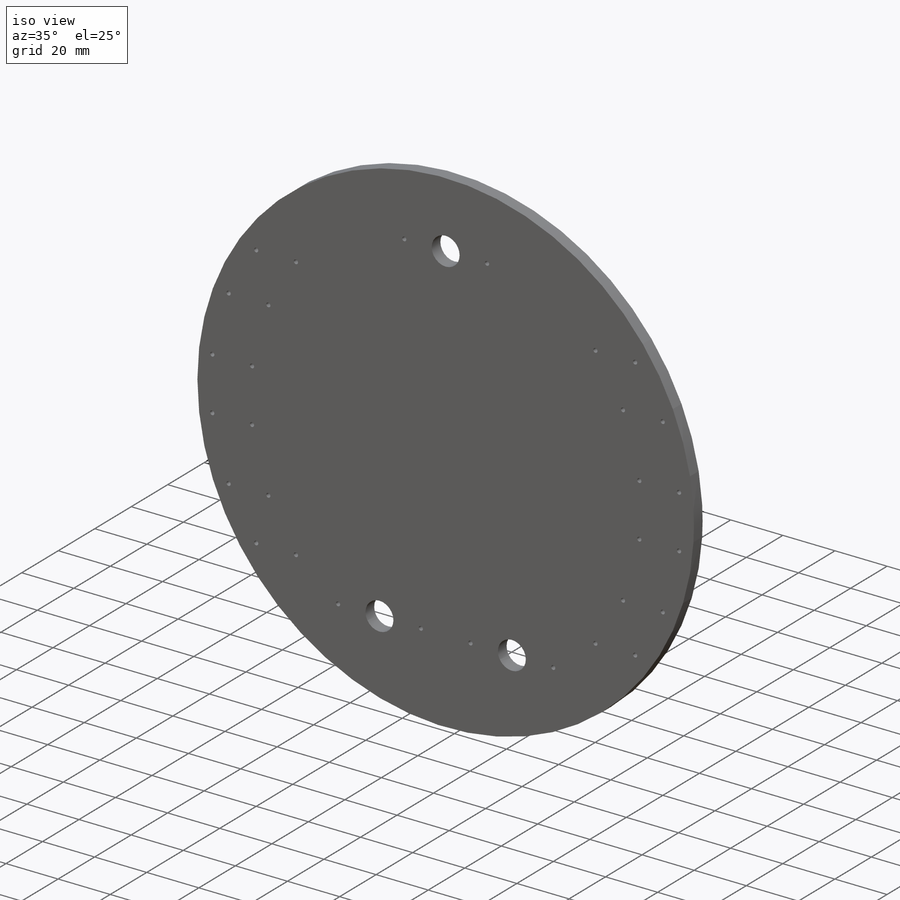
[diagram: iso view]
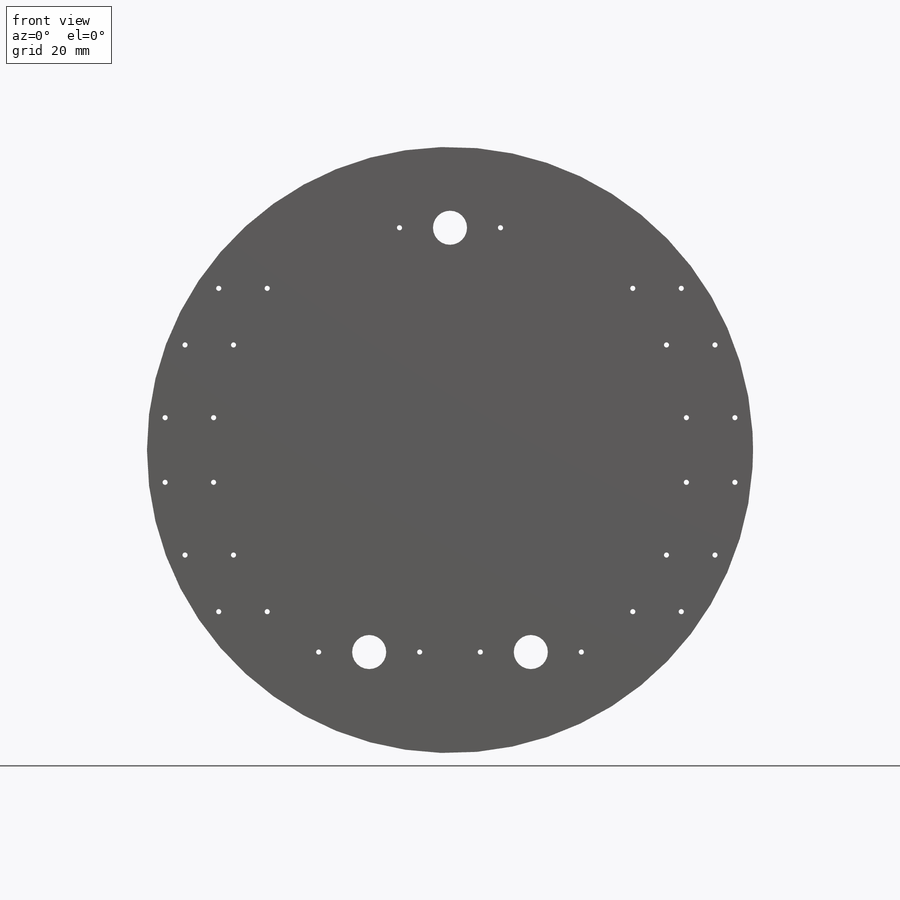
[diagram: front view]
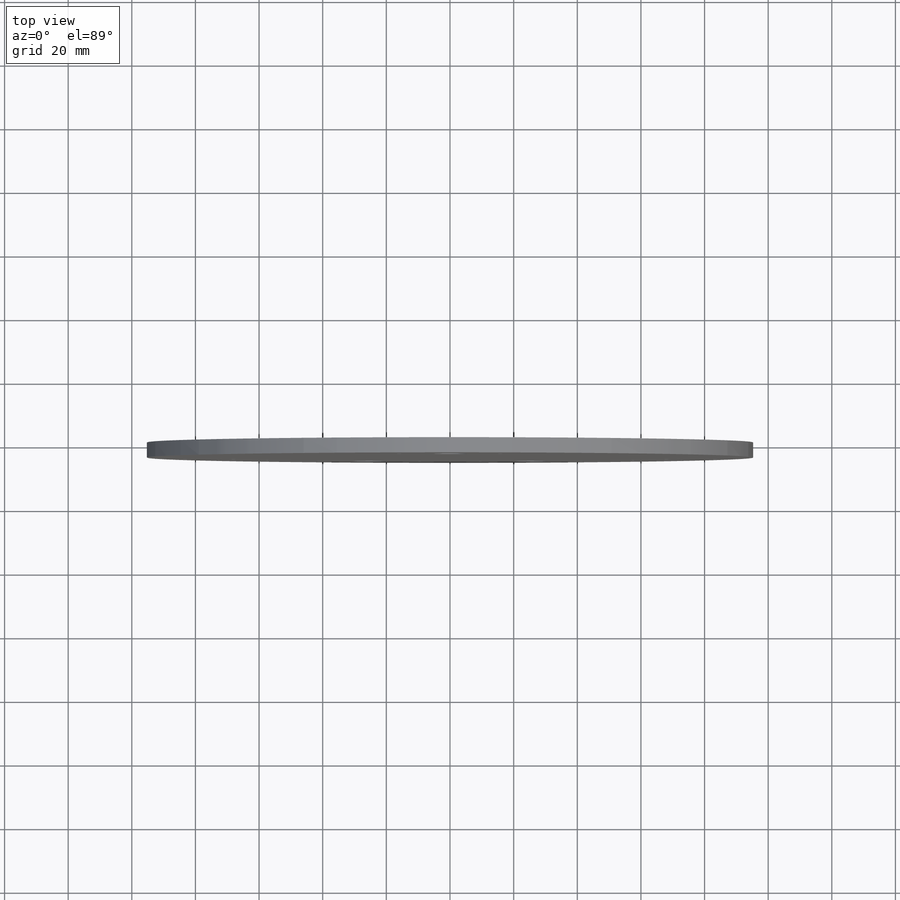
[diagram: top view]
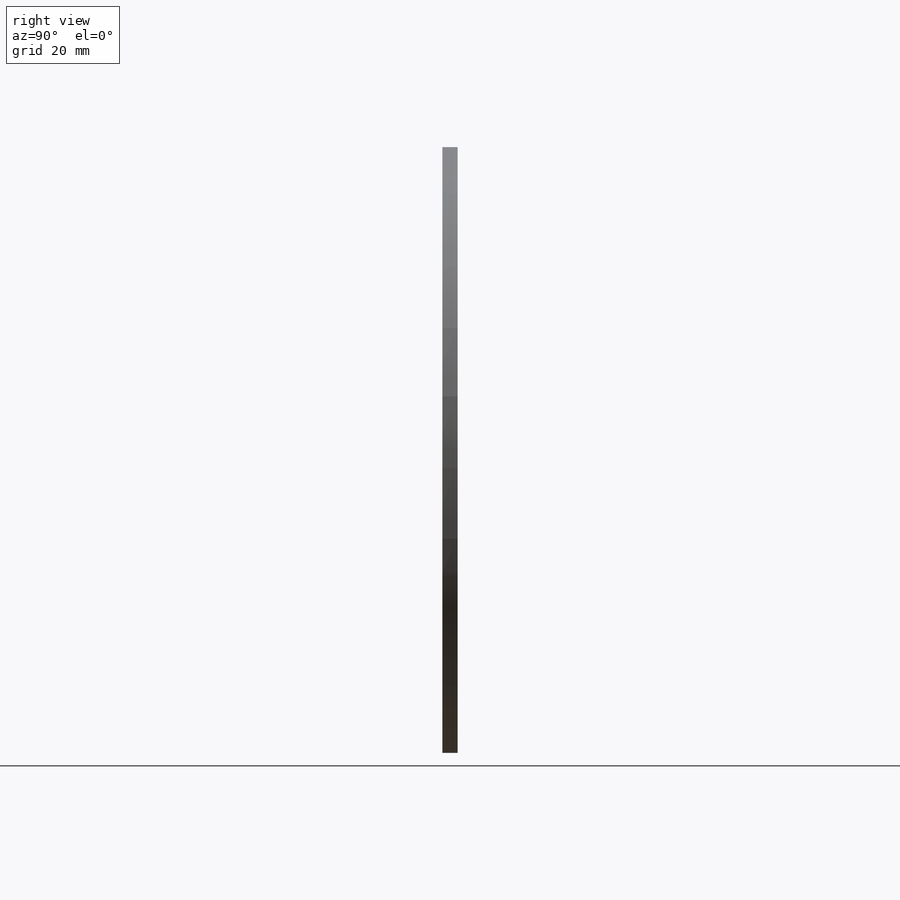
[diagram: right view]
SOLIDWORKS PART (.sldprt)
format: sldprt  version: not decoded by parser v0  size: 483,328 bytes
history: native  units: mm
features: thread x33, sketch x7, hole x3, material x1, extrude x1 (+11 scaffold rows collapsed)
feature tree (56):
  scaffold x11  (default folders/planes/origin — collapsed)
  material  "Delrin 2700 NC010, Low Viscosity Acetal Copolymer (SS)"
  sketch  "Sketch1"  dims[D1=190.5mm]
  extrude  "Boss-Extrude1"  Depth=4.7625mm
  hole  "M2x0.4 Tapped Hole1"  Diameter=1.6mm Depth=5.334mm
  sketch  "Sketch3"  dims[c1.D4=165.1mm c1.D1=15.24mm c1.D2=38.1mm c1.D3=50.8mm c2.D2=33.02mm c2.D3=15.24mm c2.D5=50.8mm c2.D6=15.24mm c2.D7=10.16mm]
  sketch  "Sketch2"  dims[hole-wizard template sketch: 47 standard entries collapsed; hole parameters kept: c15.Tap Drill Depth=5.334mm c15.D3=~14.816244mm c15.Drill Angle=180.0deg]
  thread  "Hole Thread1"  Diameter=4.064mm  [1 undecoded]
  thread  "Hole Thread2"  Diameter=4.064mm  [1 undecoded]
  thread  "Hole Thread3"  Diameter=4.064mm  [1 undecoded]
  thread  "Hole Thread4"  Diameter=4.064mm  [1 undecoded]
  thread  "Hole Thread5"  Diameter=4.064mm  [1 undecoded]
  thread  "Hole Thread6"  Diameter=4.064mm  [1 undecoded]
  thread  "Hole Thread7"  Diameter=4.064mm  [1 undecoded]
  thread  "Hole Thread8"  Diameter=4.064mm  [1 undecoded]
  thread  "Hole Thread9"  Diameter=4.064mm  [1 undecoded]
  thread  "Hole Thread10"  Diameter=4.064mm  [1 undecoded]
  thread  "Hole Thread11"  Diameter=4.064mm  [1 undecoded]
  thread  "Hole Thread12"  Diameter=4.064mm  [1 undecoded]
  thread  "Hole Thread13"  Diameter=4.064mm  [1 undecoded]
  thread  "Hole Thread14"  Diameter=4.064mm  [1 undecoded]
  thread  "Hole Thread15"  Diameter=4.064mm  [1 undecoded]
  thread  "Hole Thread16"  Diameter=4.064mm  [1 undecoded]
  thread  "Hole Thread17"  Diameter=4.064mm  [1 undecoded]
  thread  "Hole Thread18"  Diameter=4.064mm  [1 undecoded]
  thread  "Hole Thread19"  Diameter=4.064mm  [1 undecoded]
  thread  "Hole Thread20"  Diameter=4.064mm  [1 undecoded]
  thread  "Hole Thread21"  Diameter=4.064mm  [1 undecoded]
  thread  "Hole Thread22"  Diameter=4.064mm  [1 undecoded]
  thread  "Hole Thread23"  Diameter=4.064mm  [1 undecoded]
  thread  "Hole Thread24"  Diameter=4.064mm  [1 undecoded]
  hole  "M2x0.4 Tapped Hole2"  Diameter=1.6mm Depth=5.334mm
  sketch  "Sketch5"  dims[c1.D1=31.75mm c1.D2=63.5mm c1.D3=12.7mm c1.D4=31.75mm c1.D5=69.85mm c1.D6=~53.009094mm c2.D6=90.0deg c3.D6=25.4mm c3.D3=25.4mm]
  sketch  "Sketch4"  dims[hole-wizard template sketch: 47 standard entries collapsed; hole parameters kept: c15.Tap Drill Depth=5.334mm c15.D3=~14.816244mm c15.Drill Angle=180.0deg]
  thread  "Hole Thread25"  Diameter=4.064mm  [1 undecoded]
  thread  "Hole Thread26"  Diameter=4.064mm  [1 undecoded]
  thread  "Hole Thread27"  Diameter=4.064mm  [1 undecoded]
  thread  "Hole Thread28"  Diameter=4.064mm  [1 undecoded]
  thread  "Hole Thread29"  Diameter=4.064mm  [1 undecoded]
  thread  "Hole Thread30"  Diameter=4.064mm  [1 undecoded]
  hole  "1/2-13 Tapped Hole1"  Diameter=10.71626mm Depth=31.242mm
  sketch  "Sketch10"
  sketch  "Sketch9"  dims[hole-wizard template sketch: 47 standard entries collapsed; hole parameters kept: c15.Tap Drill Depth=31.242mm c15.D3=~14.816244mm c15.Drill Angle=180.0deg]
  thread  "Hole Thread35"  Diameter=4.7625mm  [1 undecoded]
  thread  "Hole Thread36"  Diameter=4.7625mm  [1 undecoded]
  thread  "Hole Thread37"  Diameter=4.7625mm  [1 undecoded]
decode coverage: 43 of 44 modeling features carry decoded parameters
note: ~ marks probable driven/reference dimensions
note: 33 parameter values undecoded
note: suppression state not decoded; provenance and decode notes live in map.json
